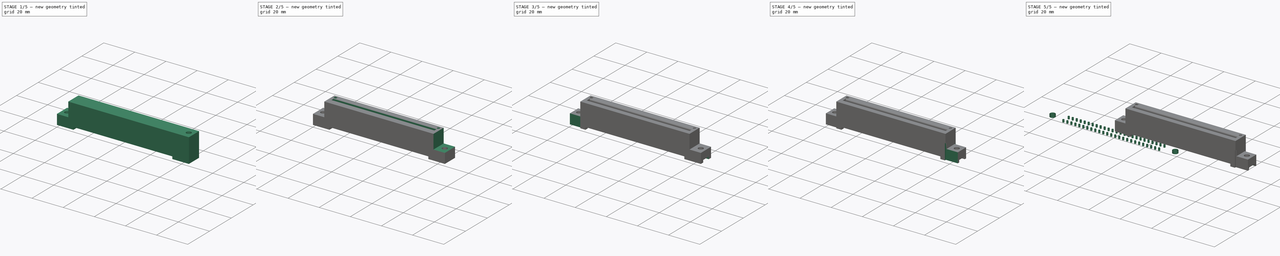
[diagram: build sequence overview — one tinted view per stage of 5, left to right]
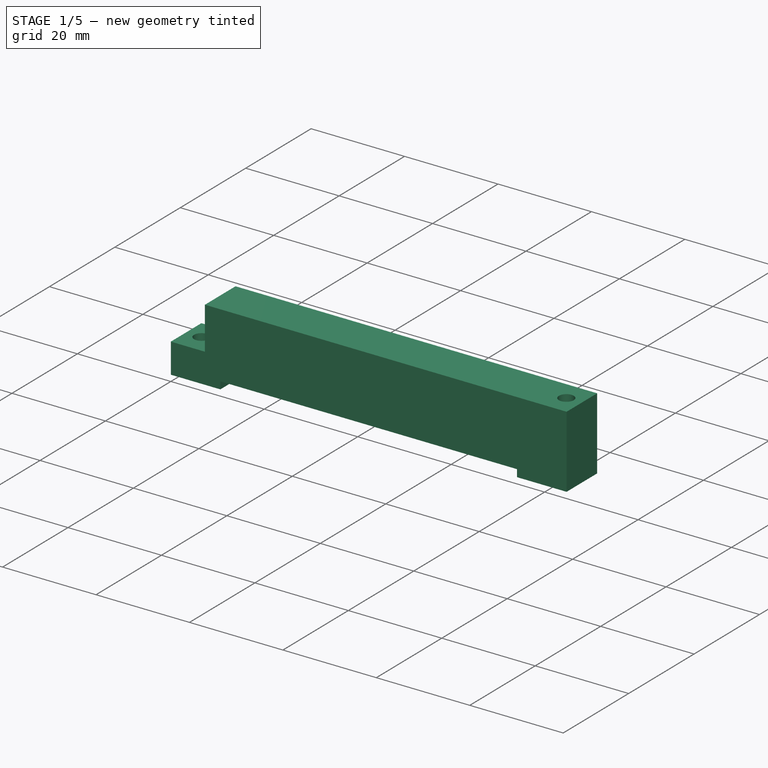
[diagram: stage 1 of 5 — iso view after this stage's code; geometry added in this stage tinted green]
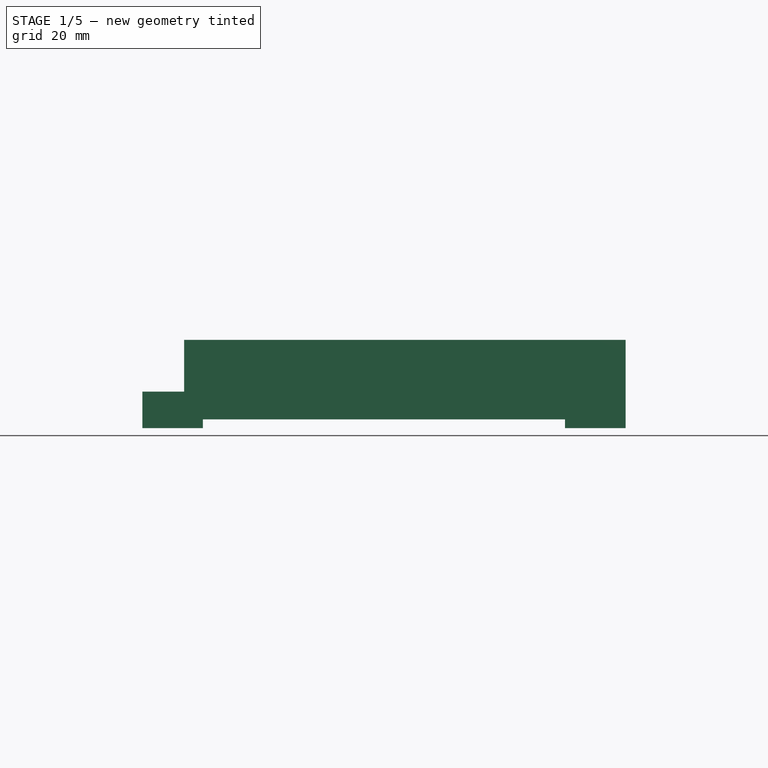
[diagram: stage 1 of 5 — front view after this stage's code; geometry added in this stage tinted green]
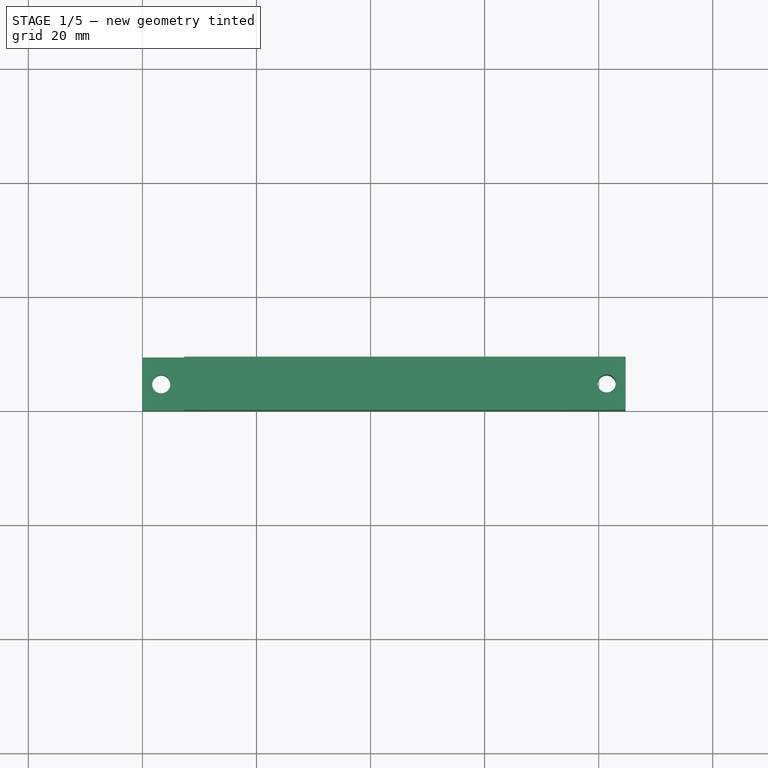
[diagram: stage 1 of 5 — top view after this stage's code; geometry added in this stage tinted green]
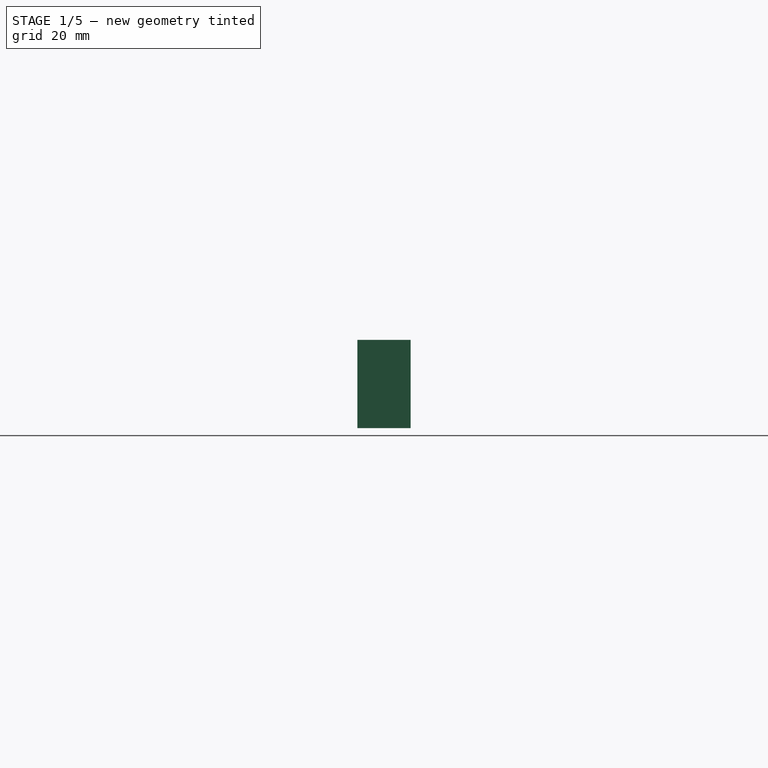
[diagram: stage 1 of 5 — right view after this stage's code; geometry added in this stage tinted green]
FCSTD DOCUMENT  (FreeCAD 0.19R24291 (Git))
Label: MSX-slot
License: All rights reserved
LicenseURL: http://en.wikipedia.org/wiki/All_rights_reserved
objects: PartDesign::SubtractiveBox×12, PartDesign::Chamfer×4, Sketcher::SketchObject×3, PartDesign::SubtractiveCylinder×3, PartDesign::Fillet×2, Part::Feature×2, PartDesign::AdditiveBox×1, Part::FeaturePython×1, App::Part×1, PartDesign::Body×1
note: 51 computed .brp shape members not serialized (recipe doc carries the construction recipe); baked Part::Feature solids carry a one-line shape summary decoded from their .brp

FEATURE [Sketcher::SketchObject] Sketch  label="Top"
  FullyConstrained = false
  Placement = pos=(-73.15,-92.65,15.4901) rot=(0,0,1;0rad)
  sketch-geometry (181):
    g0: LineSegment StartX=73.0185 StartY=93.5025 StartZ=0 EndX=73.0185 EndY=101.123 EndZ=0
    g1: LineSegment StartX=80.448 StartY=101.986 StartZ=0 EndX=80.448 EndY=92.6389 EndZ=0
    g2: LineSegment StartX=80.956 StartY=94.8551 StartZ=0 EndX=80.956 EndY=99.7699 EndZ=0
    g3: LineSegment StartX=81.6672 StartY=100.868 StartZ=0 EndX=81.6672 EndY=99.2429 EndZ=0
    g4: LineSegment StartX=82.48 StartY=98.2459 StartZ=0 EndX=82.48 EndY=96.3791 EndZ=0
    g5: LineSegment StartX=83.2928 StartY=99.2429 StartZ=0 EndX=83.2928 EndY=100.868 EndZ=0
    g6: LineSegment StartX=84.3723 StartY=98.2459 StartZ=0 EndX=84.3723 EndY=97.5924 EndZ=0
    g7: LineSegment StartX=84.3723 StartY=97.0326 StartZ=0 EndX=84.3723 EndY=96.3791 EndZ=0
    g8: LineSegment StartX=85.6677 StartY=98.2459 StartZ=0 EndX=85.6677 EndY=97.5924 EndZ=0
    g9: LineSegment StartX=85.6677 StartY=97.0326 StartZ=0 EndX=85.6677 EndY=96.3791 EndZ=0
    g10: LineSegment StartX=86.9123 StartY=98.2459 StartZ=0 EndX=86.9123 EndY=97.5924 EndZ=0
    g11: LineSegment StartX=86.9123 StartY=97.0326 StartZ=0 EndX=86.9123 EndY=96.3791 EndZ=0
    g12: LineSegment StartX=88.2077 StartY=98.2459 StartZ=0 EndX=88.2077 EndY=97.5924 EndZ=0
    g13: LineSegment StartX=88.2077 StartY=97.0326 StartZ=0 EndX=88.2077 EndY=96.3791 EndZ=0
    g14: LineSegment StartX=89.4523 StartY=98.2459 StartZ=0 EndX=89.4523 EndY=97.5924 EndZ=0
    g15: LineSegment StartX=89.4523 StartY=97.0326 StartZ=0 EndX=89.4523 EndY=96.3791 EndZ=0
    g16: LineSegment StartX=90.7477 StartY=98.2459 StartZ=0 EndX=90.7477 EndY=97.5924 EndZ=0
    g17: LineSegment StartX=90.7477 StartY=97.0326 StartZ=0 EndX=90.7477 EndY=96.3791 EndZ=0
    g18: LineSegment StartX=91.9923 StartY=98.2459 StartZ=0 EndX=91.9923 EndY=97.5924 EndZ=0
    g19: LineSegment StartX=91.9923 StartY=97.0326 StartZ=0 EndX=91.9923 EndY=96.3791 EndZ=0
    g20: LineSegment StartX=93.2877 StartY=98.2459 StartZ=0 EndX=93.2877 EndY=97.5924 EndZ=0
    g21: LineSegment StartX=93.2877 StartY=97.0326 StartZ=0 EndX=93.2877 EndY=96.3791 EndZ=0
    g22: LineSegment StartX=94.5323 StartY=98.2459 StartZ=0 EndX=94.5323 EndY=97.5924 EndZ=0
    g23: LineSegment StartX=94.5323 StartY=97.0326 StartZ=0 EndX=94.5323 EndY=96.3791 EndZ=0
    g24: LineSegment StartX=95.8277 StartY=98.2459 StartZ=0 EndX=95.8277 EndY=97.5924 EndZ=0
    g25: LineSegment StartX=95.8277 StartY=97.0326 StartZ=0 EndX=95.8277 EndY=96.3791 EndZ=0
    g26: LineSegment StartX=97.0723 StartY=98.2459 StartZ=0 EndX=97.0723 EndY=97.5924 EndZ=0
    g27: LineSegment StartX=97.0723 StartY=97.0326 StartZ=0 EndX=97.0723 EndY=96.3791 EndZ=0
    g28: LineSegment StartX=98.3677 StartY=98.2459 StartZ=0 EndX=98.3677 EndY=97.5924 EndZ=0
    g29: LineSegment StartX=98.3677 StartY=97.0326 StartZ=0 EndX=98.3677 EndY=96.3791 EndZ=0
    g30: LineSegment StartX=99.6123 StartY=98.2459 StartZ=0 EndX=99.6123 EndY=97.5924 EndZ=0
    g31: LineSegment StartX=99.6123 StartY=97.0326 StartZ=0 EndX=99.6123 EndY=96.3791 EndZ=0
    g32: LineSegment StartX=100.908 StartY=98.2459 StartZ=0 EndX=100.908 EndY=97.5924 EndZ=0
    g33: LineSegment StartX=100.908 StartY=97.0326 StartZ=0 EndX=100.908 EndY=96.3791 EndZ=0
    g34: LineSegment StartX=102.152 StartY=98.2459 StartZ=0 EndX=102.152 EndY=97.5924 EndZ=0
    g35: LineSegment StartX=102.152 StartY=97.0326 StartZ=0 EndX=102.152 EndY=96.3791 EndZ=0
    g36: LineSegment StartX=103.448 StartY=98.2459 StartZ=0 EndX=103.448 EndY=97.5924 EndZ=0
    g37: LineSegment StartX=103.448 StartY=97.0326 StartZ=0 EndX=103.448 EndY=96.3791 EndZ=0
    g38: LineSegment StartX=104.692 StartY=98.2459 StartZ=0 EndX=104.692 EndY=97.5924 EndZ=0
    g39: LineSegment StartX=104.692 StartY=97.0326 StartZ=0 EndX=104.692 EndY=96.3791 EndZ=0
    g40: LineSegment StartX=105.988 StartY=98.2459 StartZ=0 EndX=105.988 EndY=97.5924 EndZ=0
    g41: LineSegment StartX=105.988 StartY=97.0326 StartZ=0 EndX=105.988 EndY=96.3791 EndZ=0
    g42: LineSegment StartX=107.232 StartY=98.2459 StartZ=0 EndX=107.232 EndY=97.5924 EndZ=0
    g43: LineSegment StartX=107.232 StartY=97.0326 StartZ=0 EndX=107.232 EndY=96.3791 EndZ=0
    g44: LineSegment StartX=108.528 StartY=98.2459 StartZ=0 EndX=108.528 EndY=97.5924 EndZ=0
    g45: LineSegment StartX=108.528 StartY=97.0326 StartZ=0 EndX=108.528 EndY=96.3791 EndZ=0
    g46: LineSegment StartX=109.772 StartY=98.2459 StartZ=0 EndX=109.772 EndY=97.5924 EndZ=0
    g47: LineSegment StartX=109.772 StartY=97.0326 StartZ=0 EndX=109.772 EndY=96.3791 EndZ=0
    g48: LineSegment StartX=111.068 StartY=98.2459 StartZ=0 EndX=111.068 EndY=97.5924 EndZ=0
    g49: LineSegment StartX=111.068 StartY=97.0326 StartZ=0 EndX=111.068 EndY=96.3791 EndZ=0
    g50: LineSegment StartX=112.312 StartY=98.2459 StartZ=0 EndX=112.312 EndY=97.5924 EndZ=0
    g51: LineSegment StartX=112.312 StartY=97.0326 StartZ=0 EndX=112.312 EndY=96.3791 EndZ=0
    g52: LineSegment StartX=80.448 StartY=92.6389 StartZ=0 EndX=150.552 EndY=92.6389 EndZ=0
    g53: LineSegment StartX=157.982 StartY=93.5025 StartZ=0 EndX=150.552 EndY=93.5025 EndZ=0
    g54: LineSegment StartX=80.448 StartY=93.5025 StartZ=0 EndX=73.0185 EndY=93.5025 EndZ=0
    g55: LineSegment StartX=113.608 StartY=98.2459 StartZ=0 EndX=113.608 EndY=97.5924 EndZ=0
    g56: LineSegment StartX=113.608 StartY=97.0326 StartZ=0 EndX=113.608 EndY=96.3791 EndZ=0
    g57: LineSegment StartX=114.852 StartY=98.2459 StartZ=0 EndX=114.852 EndY=97.5924 EndZ=0
    g58: LineSegment StartX=114.852 StartY=97.0326 StartZ=0 EndX=114.852 EndY=96.3791 EndZ=0
    g59: LineSegment StartX=150.044 StartY=94.8551 StartZ=0 EndX=80.956 EndY=94.8551 EndZ=0
    g60: LineSegment StartX=148.52 StartY=96.3791 StartZ=0 EndX=82.48 EndY=96.3791 EndZ=0
    g61: LineSegment StartX=84.3723 StartY=97.0331 StartZ=0 EndX=85.6677 EndY=97.0331 EndZ=0
    g62: LineSegment StartX=86.9123 StartY=97.0331 StartZ=0 EndX=88.2077 EndY=97.0331 EndZ=0
    g63: LineSegment StartX=89.4523 StartY=97.0331 StartZ=0 EndX=90.7477 EndY=97.0331 EndZ=0
    g64: LineSegment StartX=91.9923 StartY=97.0331 StartZ=0 EndX=93.2877 EndY=97.0331 EndZ=0
    g65: LineSegment StartX=94.5323 StartY=97.0331 StartZ=0 EndX=95.8277 EndY=97.0331 EndZ=0
    g66: LineSegment StartX=97.0723 StartY=97.0331 StartZ=0 EndX=98.3677 EndY=97.0331 EndZ=0
    g67: LineSegment StartX=99.6123 StartY=97.0331 StartZ=0 EndX=100.908 EndY=97.0331 EndZ=0
    g68: LineSegment StartX=102.152 StartY=97.0331 StartZ=0 EndX=103.448 EndY=97.0331 EndZ=0
    g69: LineSegment StartX=104.692 StartY=97.0331 StartZ=0 EndX=105.988 EndY=97.0331 EndZ=0
    g70: LineSegment StartX=107.232 StartY=97.0331 StartZ=0 EndX=108.528 EndY=97.0331 EndZ=0
    g71: LineSegment StartX=109.772 StartY=97.0331 StartZ=0 EndX=111.068 EndY=97.0331 EndZ=0
    g72: LineSegment StartX=112.312 StartY=97.0331 StartZ=0 EndX=113.608 EndY=97.0331 EndZ=0
    g73: LineSegment StartX=114.852 StartY=97.0331 StartZ=0 EndX=116.148 EndY=97.0331 EndZ=0
    g74: LineSegment StartX=117.392 StartY=97.0331 StartZ=0 EndX=118.688 EndY=97.0331 EndZ=0
    g75: LineSegment StartX=119.932 StartY=97.0331 StartZ=0 EndX=121.228 EndY=97.0331 EndZ=0
    g76: LineSegment StartX=122.472 StartY=97.0331 StartZ=0 EndX=123.768 EndY=97.0331 EndZ=0
    g77: LineSegment StartX=125.012 StartY=97.0331 StartZ=0 EndX=126.308 EndY=97.0331 EndZ=0
    g78: LineSegment StartX=127.552 StartY=97.0331 StartZ=0 EndX=128.848 EndY=97.0331 EndZ=0
    g79: LineSegment StartX=130.092 StartY=97.0331 StartZ=0 EndX=131.388 EndY=97.0331 EndZ=0
    g80: LineSegment StartX=132.632 StartY=97.0331 StartZ=0 EndX=133.928 EndY=97.0331 EndZ=0
    g81: LineSegment StartX=135.172 StartY=97.0331 StartZ=0 EndX=136.468 EndY=97.0331 EndZ=0
    g82: LineSegment StartX=137.712 StartY=97.0331 StartZ=0 EndX=139.008 EndY=97.0331 EndZ=0
    g83: LineSegment StartX=140.252 StartY=97.0331 StartZ=0 EndX=141.548 EndY=97.0331 EndZ=0
    g84: LineSegment StartX=142.792 StartY=97.0331 StartZ=0 EndX=144.088 EndY=97.0331 EndZ=0
    g85: LineSegment StartX=145.332 StartY=97.0331 StartZ=0 EndX=146.628 EndY=97.0331 EndZ=0
    g86: LineSegment StartX=84.3723 StartY=97.5919 StartZ=0 EndX=85.6677 EndY=97.5919 EndZ=0
    g87: LineSegment StartX=86.9123 StartY=97.5919 StartZ=0 EndX=88.2077 EndY=97.5919 EndZ=0
    g88: LineSegment StartX=89.4523 StartY=97.5919 StartZ=0 EndX=90.7477 EndY=97.5919 EndZ=0
    g89: LineSegment StartX=91.9923 StartY=97.5919 StartZ=0 EndX=93.2877 EndY=97.5919 EndZ=0
    g90: LineSegment StartX=94.5323 StartY=97.5919 StartZ=0 EndX=95.8277 EndY=97.5919 EndZ=0
    g91: LineSegment StartX=97.0723 StartY=97.5919 StartZ=0 EndX=98.3677 EndY=97.5919 EndZ=0
    g92: LineSegment StartX=99.6123 StartY=97.5919 StartZ=0 EndX=100.908 EndY=97.5919 EndZ=0
    g93: LineSegment StartX=102.152 StartY=97.5919 StartZ=0 EndX=103.448 EndY=97.5919 EndZ=0
    g94: LineSegment StartX=104.692 StartY=97.5919 StartZ=0 EndX=105.988 EndY=97.5919 EndZ=0
    g95: LineSegment StartX=107.232 StartY=97.5919 StartZ=0 EndX=108.528 EndY=97.5919 EndZ=0
    g96: LineSegment StartX=109.772 StartY=97.5919 StartZ=0 EndX=111.068 EndY=97.5919 EndZ=0
    g97: LineSegment StartX=112.312 StartY=97.5919 StartZ=0 EndX=113.608 EndY=97.5919 EndZ=0
    g98: LineSegment StartX=114.852 StartY=97.5919 StartZ=0 EndX=116.148 EndY=97.5919 EndZ=0
    g99: LineSegment StartX=117.392 StartY=97.5919 StartZ=0 EndX=118.688 EndY=97.5919 EndZ=0
    g100: LineSegment StartX=119.932 StartY=97.5919 StartZ=0 EndX=121.228 EndY=97.5919 EndZ=0
    g101: LineSegment StartX=122.472 StartY=97.5919 StartZ=0 EndX=123.768 EndY=97.5919 EndZ=0
    g102: LineSegment StartX=125.012 StartY=97.5919 StartZ=0 EndX=126.308 EndY=97.5919 EndZ=0
    g103: LineSegment StartX=127.552 StartY=97.5919 StartZ=0 EndX=128.848 EndY=97.5919 EndZ=0
    g104: LineSegment StartX=130.092 StartY=97.5919 StartZ=0 EndX=131.388 EndY=97.5919 EndZ=0
    g105: LineSegment StartX=132.632 StartY=97.5919 StartZ=0 EndX=133.928 EndY=97.5919 EndZ=0
    g106: LineSegment StartX=135.172 StartY=97.5919 StartZ=0 EndX=136.468 EndY=97.5919 EndZ=0
    g107: LineSegment StartX=137.712 StartY=97.5919 StartZ=0 EndX=139.008 EndY=97.5919 EndZ=0
    g108: LineSegment StartX=140.252 StartY=97.5919 StartZ=0 EndX=141.548 EndY=97.5919 EndZ=0
    g109: LineSegment StartX=142.792 StartY=97.5919 StartZ=0 EndX=144.088 EndY=97.5919 EndZ=0
    g110: LineSegment StartX=145.332 StartY=97.5919 StartZ=0 EndX=146.628 EndY=97.5919 EndZ=0
    g111: LineSegment StartX=116.148 StartY=98.2459 StartZ=0 EndX=116.148 EndY=97.5924 EndZ=0
    g112: LineSegment StartX=116.148 StartY=97.0326 StartZ=0 EndX=116.148 EndY=96.3791 EndZ=0
    g113: LineSegment StartX=117.392 StartY=98.2459 StartZ=0 EndX=117.392 EndY=97.5924 EndZ=0
    g114: LineSegment StartX=117.392 StartY=97.0326 StartZ=0 EndX=117.392 EndY=96.3791 EndZ=0
    g115: LineSegment StartX=118.688 StartY=98.2459 StartZ=0 EndX=118.688 EndY=97.5924 EndZ=0
    g116: LineSegment StartX=118.688 StartY=97.0326 StartZ=0 EndX=118.688 EndY=96.3791 EndZ=0
    g117: LineSegment StartX=82.48 StartY=98.2459 StartZ=0 EndX=148.52 EndY=98.2459 EndZ=0
    g118: LineSegment StartX=81.6672 StartY=99.2429 StartZ=0 EndX=83.2928 EndY=99.2429 EndZ=0
    g119: LineSegment StartX=80.956 StartY=99.7699 StartZ=0 EndX=81.6672 EndY=99.7699 EndZ=0
    g120: LineSegment StartX=83.2928 StartY=99.7699 StartZ=0 EndX=147.759 EndY=99.7699 EndZ=0
    g121: LineSegment StartX=149.281 StartY=99.7699 StartZ=0 EndX=150.044 EndY=99.7699 EndZ=0
    g122: LineSegment StartX=119.932 StartY=98.2459 StartZ=0 EndX=119.932 EndY=97.5924 EndZ=0
    g123: LineSegment StartX=119.932 StartY=97.0326 StartZ=0 EndX=119.932 EndY=96.3791 EndZ=0
    g124: LineSegment StartX=121.228 StartY=98.2459 StartZ=0 EndX=121.228 EndY=97.5924 EndZ=0
    g125: LineSegment StartX=121.228 StartY=97.0326 StartZ=0 EndX=121.228 EndY=96.3791 EndZ=0
    g126: LineSegment StartX=83.2928 StartY=100.868 StartZ=0 EndX=81.6672 EndY=100.868 EndZ=0
    g127: LineSegment StartX=157.982 StartY=101.123 StartZ=0 EndX=150.552 EndY=101.123 EndZ=0
    g128: LineSegment StartX=80.448 StartY=101.123 StartZ=0 EndX=73.0185 EndY=101.123 EndZ=0
    g129: LineSegment StartX=80.448 StartY=101.986 StartZ=0 EndX=150.552 EndY=101.986 EndZ=0
    g130: LineSegment StartX=122.472 StartY=98.2459 StartZ=0 EndX=122.472 EndY=97.5924 EndZ=0
    g131: LineSegment StartX=122.472 StartY=97.0326 StartZ=0 EndX=122.472 EndY=96.3791 EndZ=0
    g132: LineSegment StartX=123.768 StartY=98.2459 StartZ=0 EndX=123.768 EndY=97.5924 EndZ=0
    g133: LineSegment StartX=123.768 StartY=97.0326 StartZ=0 EndX=123.768 EndY=96.3791 EndZ=0
    g134: LineSegment StartX=125.012 StartY=98.2459 StartZ=0 EndX=125.012 EndY=97.5924 EndZ=0
    g135: LineSegment StartX=125.012 StartY=97.0326 StartZ=0 EndX=125.012 EndY=96.3791 EndZ=0
    g136: LineSegment StartX=126.308 StartY=98.2459 StartZ=0 EndX=126.308 EndY=97.5924 EndZ=0
    g137: LineSegment StartX=126.308 StartY=97.0326 StartZ=0 EndX=126.308 EndY=96.3791 EndZ=0
    g138: LineSegment StartX=127.552 StartY=98.2459 StartZ=0 EndX=127.552 EndY=97.5924 EndZ=0
    g139: LineSegment StartX=127.552 StartY=97.0326 StartZ=0 EndX=127.552 EndY=96.3791 EndZ=0
    g140: LineSegment StartX=128.848 StartY=98.2459 StartZ=0 EndX=128.848 EndY=97.5924 EndZ=0
    g141: LineSegment StartX=128.848 StartY=97.0326 StartZ=0 EndX=128.848 EndY=96.3791 EndZ=0
    g142: LineSegment StartX=130.092 StartY=98.2459 StartZ=0 EndX=130.092 EndY=97.5924 EndZ=0
    g143: LineSegment StartX=130.092 StartY=97.0326 StartZ=0 EndX=130.092 EndY=96.3791 EndZ=0
    g144: LineSegment StartX=131.388 StartY=98.2459 StartZ=0 EndX=131.388 EndY=97.5924 EndZ=0
    g145: LineSegment StartX=131.388 StartY=97.0326 StartZ=0 EndX=131.388 EndY=96.3791 EndZ=0
    g146: LineSegment StartX=132.632 StartY=98.2459 StartZ=0 EndX=132.632 EndY=97.5924 EndZ=0
    g147: LineSegment StartX=132.632 StartY=97.0326 StartZ=0 EndX=132.632 EndY=96.3791 EndZ=0
    g148: LineSegment StartX=133.928 StartY=98.2459 StartZ=0 EndX=133.928 EndY=97.5924 EndZ=0
    g149: LineSegment StartX=133.928 StartY=97.0326 StartZ=0 EndX=133.928 EndY=96.3791 EndZ=0
    g150: LineSegment StartX=135.172 StartY=98.2459 StartZ=0 EndX=135.172 EndY=97.5924 EndZ=0
    g151: LineSegment StartX=135.172 StartY=97.0326 StartZ=0 EndX=135.172 EndY=96.3791 EndZ=0
    g152: LineSegment StartX=136.468 StartY=98.2459 StartZ=0 EndX=136.468 EndY=97.5924 EndZ=0
    g153: LineSegment StartX=136.468 StartY=97.0326 StartZ=0 EndX=136.468 EndY=96.3791 EndZ=0
    g154: LineSegment StartX=137.712 StartY=98.2459 StartZ=0 EndX=137.712 EndY=97.5924 EndZ=0
    g155: LineSegment StartX=137.712 StartY=97.0326 StartZ=0 EndX=137.712 EndY=96.3791 EndZ=0
    g156: LineSegment StartX=139.008 StartY=98.2459 StartZ=0 EndX=139.008 EndY=97.5924 EndZ=0
    g157: LineSegment StartX=139.008 StartY=97.0326 StartZ=0 EndX=139.008 EndY=96.3791 EndZ=0
    g158: LineSegment StartX=140.252 StartY=98.2459 StartZ=0 EndX=140.252 EndY=97.5924 EndZ=0
    g159: LineSegment StartX=140.252 StartY=97.0326 StartZ=0 EndX=140.252 EndY=96.3791 EndZ=0
    g160: LineSegment StartX=141.548 StartY=98.2459 StartZ=0 EndX=141.548 EndY=97.5924 EndZ=0
    g161: LineSegment StartX=141.548 StartY=97.0326 StartZ=0 EndX=141.548 EndY=96.3791 EndZ=0
    g162: LineSegment StartX=142.792 StartY=98.2459 StartZ=0 EndX=142.792 EndY=97.5924 EndZ=0
    g163: LineSegment StartX=142.792 StartY=97.0326 StartZ=0 EndX=142.792 EndY=96.3791 EndZ=0
    g164: LineSegment StartX=144.088 StartY=98.2459 StartZ=0 EndX=144.088 EndY=97.5924 EndZ=0
    g165: LineSegment StartX=144.088 StartY=97.0326 StartZ=0 EndX=144.088 EndY=96.3791 EndZ=0
    g166: LineSegment StartX=145.332 StartY=98.2459 StartZ=0 EndX=145.332 EndY=97.5924 EndZ=0
    g167: LineSegment StartX=145.332 StartY=97.0326 StartZ=0 EndX=145.332 EndY=96.3791 EndZ=0
    g168: LineSegment StartX=146.628 StartY=98.2459 StartZ=0 EndX=146.628 EndY=97.5924 EndZ=0
    g169: LineSegment StartX=146.628 StartY=97.0326 StartZ=0 EndX=146.628 EndY=96.3791 EndZ=0
    g170: LineSegment StartX=148.52 StartY=98.2459 StartZ=0 EndX=148.52 EndY=96.3791 EndZ=0
    g171: LineSegment StartX=150.044 StartY=99.7699 StartZ=0 EndX=150.044 EndY=94.8551 EndZ=0
    g172: LineSegment StartX=150.552 StartY=101.986 StartZ=0 EndX=150.552 EndY=92.6389 EndZ=0
    g173: LineSegment StartX=157.982 StartY=93.5025 StartZ=0 EndX=157.982 EndY=101.123 EndZ=0
    g174: Circle CenterX=154.553 CenterY=97.3125 CenterZ=0 NormalX=0 NormalY=0 NormalZ=-1 AngleXU=0 Radius=1.6256
    g175: Circle CenterX=76.4475 CenterY=97.3125 CenterZ=0 NormalX=0 NormalY=0 NormalZ=-1 AngleXU=0 Radius=1.6256
    g176: Circle CenterX=148.52 CenterY=100.056 CenterZ=0 NormalX=0 NormalY=0 NormalZ=-1 AngleXU=0 Radius=0.8128
    g177: Ellipse CenterX=148.52 CenterY=99.7699 CenterZ=0 NormalX=0 NormalY=0 NormalZ=1 MajorRadius=1.524 MinorRadius=1.524 AngleXU=0
    g178: Ellipse CenterX=82.48 CenterY=94.8551 CenterZ=0 NormalX=0 NormalY=0 NormalZ=1 MajorRadius=1.524 MinorRadius=1.524 AngleXU=0
    g179: Ellipse CenterX=148.52 CenterY=94.8551 CenterZ=0 NormalX=0 NormalY=0 NormalZ=1 MajorRadius=1.524 MinorRadius=1.524 AngleXU=1.5708
    g180: Ellipse CenterX=82.48 CenterY=99.7699 CenterZ=0 NormalX=0 NormalY=0 NormalZ=1 MajorRadius=1.524 MinorRadius=1.524 AngleXU=1.5708
FEATURE [Sketcher::SketchObject] Sketch001  label="Side"
  FullyConstrained = false
  Placement = pos=(157.85,9.3501,204.3) rot=(0,-0.707107,0.707107;3.14159rad)
  sketch-geometry (94):
    g0: LineSegment StartX=73.0185 StartY=197.922 StartZ=0 EndX=73.0185 EndY=204.272 EndZ=0
    g1: LineSegment StartX=80.448 StartY=188.778 StartZ=0 EndX=80.448 EndY=197.922 EndZ=0
    g2: LineSegment StartX=81.845 StartY=204.272 StartZ=0 EndX=81.845 EndY=197.668 EndZ=0
    g3: LineSegment StartX=83.75 StartY=203.129 StartZ=0 EndX=83.75 EndY=204.272 EndZ=0
    g4: LineSegment StartX=84.512 StartY=202.748 StartZ=0 EndX=84.512 EndY=202.875 EndZ=0
    g5: LineSegment StartX=84.7152 StartY=207.447 StartZ=0 EndX=84.7152 EndY=202.748 EndZ=0
    g6: LineSegment StartX=85.3248 StartY=207.447 StartZ=0 EndX=85.3248 EndY=202.748 EndZ=0
    g7: LineSegment StartX=87.2552 StartY=207.447 StartZ=0 EndX=87.2552 EndY=202.748 EndZ=0
    g8: LineSegment StartX=87.8648 StartY=207.447 StartZ=0 EndX=87.8648 EndY=202.748 EndZ=0
    g9: LineSegment StartX=89.7952 StartY=207.447 StartZ=0 EndX=89.7952 EndY=202.748 EndZ=0
    g10: LineSegment StartX=90.4048 StartY=207.447 StartZ=0 EndX=90.4048 EndY=202.748 EndZ=0
    g11: LineSegment StartX=92.3352 StartY=207.447 StartZ=0 EndX=92.3352 EndY=202.748 EndZ=0
    g12: LineSegment StartX=92.9448 StartY=207.447 StartZ=0 EndX=92.9448 EndY=202.748 EndZ=0
    g13: LineSegment StartX=94.8752 StartY=207.447 StartZ=0 EndX=94.8752 EndY=202.748 EndZ=0
    g14: LineSegment StartX=95.4848 StartY=207.447 StartZ=0 EndX=95.4848 EndY=202.748 EndZ=0
    g15: LineSegment StartX=97.4152 StartY=207.447 StartZ=0 EndX=97.4152 EndY=202.748 EndZ=0
    g16: LineSegment StartX=98.0248 StartY=207.447 StartZ=0 EndX=98.0248 EndY=202.748 EndZ=0
    g17: LineSegment StartX=99.9552 StartY=207.447 StartZ=0 EndX=99.9552 EndY=202.748 EndZ=0
    g18: LineSegment StartX=100.565 StartY=207.447 StartZ=0 EndX=100.565 EndY=202.748 EndZ=0
    g19: LineSegment StartX=102.495 StartY=207.447 StartZ=0 EndX=102.495 EndY=202.748 EndZ=0
    g20: LineSegment StartX=103.105 StartY=207.447 StartZ=0 EndX=103.105 EndY=202.748 EndZ=0
    g21: LineSegment StartX=105.035 StartY=207.447 StartZ=0 EndX=105.035 EndY=202.748 EndZ=0
    g22: LineSegment StartX=105.645 StartY=207.447 StartZ=0 EndX=105.645 EndY=202.748 EndZ=0
    g23: LineSegment StartX=80.448 StartY=188.778 StartZ=0 EndX=150.552 EndY=188.778 EndZ=0
    g24: LineSegment StartX=107.575 StartY=207.447 StartZ=0 EndX=107.575 EndY=202.748 EndZ=0
    g25: LineSegment StartX=108.185 StartY=207.447 StartZ=0 EndX=108.185 EndY=202.748 EndZ=0
    g26: LineSegment StartX=110.115 StartY=207.447 StartZ=0 EndX=110.115 EndY=202.748 EndZ=0
    g27: LineSegment StartX=110.725 StartY=207.447 StartZ=0 EndX=110.725 EndY=202.748 EndZ=0
    g28: LineSegment StartX=112.655 StartY=207.447 StartZ=0 EndX=112.655 EndY=202.748 EndZ=0
    g29: LineSegment StartX=113.265 StartY=207.447 StartZ=0 EndX=113.265 EndY=202.748 EndZ=0
    g30: LineSegment StartX=115.195 StartY=207.447 StartZ=0 EndX=115.195 EndY=202.748 EndZ=0
    g31: LineSegment StartX=115.805 StartY=207.447 StartZ=0 EndX=115.805 EndY=202.748 EndZ=0
    g32: LineSegment StartX=80.448 StartY=197.668 StartZ=0 EndX=150.552 EndY=197.668 EndZ=0
    g33: LineSegment StartX=157.982 StartY=197.922 StartZ=0 EndX=150.552 EndY=197.922 EndZ=0
    g34: LineSegment StartX=80.448 StartY=197.922 StartZ=0 EndX=73.0185 EndY=197.922 EndZ=0
    g35: LineSegment StartX=117.735 StartY=207.447 StartZ=0 EndX=117.735 EndY=202.748 EndZ=0
    g36: LineSegment StartX=118.345 StartY=207.447 StartZ=0 EndX=118.345 EndY=202.748 EndZ=0
    g37: LineSegment StartX=120.275 StartY=207.447 StartZ=0 EndX=120.275 EndY=202.748 EndZ=0
    g38: LineSegment StartX=120.885 StartY=207.447 StartZ=0 EndX=120.885 EndY=202.748 EndZ=0
    g39: LineSegment StartX=84.131 StartY=202.748 StartZ=0 EndX=146.869 EndY=202.748 EndZ=0
    g40: LineSegment StartX=84.512 StartY=202.875 StartZ=0 EndX=84.7152 EndY=202.875 EndZ=0
    g41: LineSegment StartX=157.982 StartY=204.272 StartZ=0 EndX=147.25 EndY=204.272 EndZ=0
    g42: LineSegment StartX=73.0185 StartY=204.272 StartZ=0 EndX=83.75 EndY=204.272 EndZ=0
    g43: LineSegment StartX=122.815 StartY=207.447 StartZ=0 EndX=122.815 EndY=202.748 EndZ=0
    g44: LineSegment StartX=123.425 StartY=207.447 StartZ=0 EndX=123.425 EndY=202.748 EndZ=0
    g45: LineSegment StartX=125.355 StartY=207.447 StartZ=0 EndX=125.355 EndY=202.748 EndZ=0
    g46: LineSegment StartX=125.965 StartY=207.447 StartZ=0 EndX=125.965 EndY=202.748 EndZ=0
    g47: LineSegment StartX=84.7152 StartY=207.447 StartZ=0 EndX=85.3248 EndY=207.447 EndZ=0
    g48: LineSegment StartX=87.2552 StartY=207.447 StartZ=0 EndX=87.8648 EndY=207.447 EndZ=0
    g49: LineSegment StartX=89.7952 StartY=207.447 StartZ=0 EndX=90.4048 EndY=207.447 EndZ=0
    g50: LineSegment StartX=92.3352 StartY=207.447 StartZ=0 EndX=92.9448 EndY=207.447 EndZ=0
    g51: LineSegment StartX=94.8752 StartY=207.447 StartZ=0 EndX=95.4848 EndY=207.447 EndZ=0
    g52: LineSegment StartX=97.4152 StartY=207.447 StartZ=0 EndX=98.0248 EndY=207.447 EndZ=0
    g53: LineSegment StartX=99.9552 StartY=207.447 StartZ=0 EndX=100.565 EndY=207.447 EndZ=0
    g54: LineSegment StartX=102.495 StartY=207.447 StartZ=0 EndX=103.105 EndY=207.447 EndZ=0
    g55: LineSegment StartX=105.035 StartY=207.447 StartZ=0 EndX=105.645 EndY=207.447 EndZ=0
    g56: LineSegment StartX=107.575 StartY=207.447 StartZ=0 EndX=108.185 EndY=207.447 EndZ=0
    g57: LineSegment StartX=110.115 StartY=207.447 StartZ=0 EndX=110.725 EndY=207.447 EndZ=0
    g58: LineSegment StartX=112.655 StartY=207.447 StartZ=0 EndX=113.265 EndY=207.447 EndZ=0
    g59: LineSegment StartX=115.195 StartY=207.447 StartZ=0 EndX=115.805 EndY=207.447 EndZ=0
    g60: LineSegment StartX=117.735 StartY=207.447 StartZ=0 EndX=118.345 EndY=207.447 EndZ=0
    g61: LineSegment StartX=120.275 StartY=207.447 StartZ=0 EndX=120.885 EndY=207.447 EndZ=0
    g62: LineSegment StartX=122.815 StartY=207.447 StartZ=0 EndX=123.425 EndY=207.447 EndZ=0
    g63: LineSegment StartX=125.355 StartY=207.447 StartZ=0 EndX=125.965 EndY=207.447 EndZ=0
    g64: LineSegment StartX=127.895 StartY=207.447 StartZ=0 EndX=128.505 EndY=207.447 EndZ=0
    g65: LineSegment StartX=130.435 StartY=207.447 StartZ=0 EndX=131.045 EndY=207.447 EndZ=0
    g66: LineSegment StartX=132.975 StartY=207.447 StartZ=0 EndX=133.585 EndY=207.447 EndZ=0
    g67: LineSegment StartX=135.515 StartY=207.447 StartZ=0 EndX=136.125 EndY=207.447 EndZ=0
    g68: LineSegment StartX=138.055 StartY=207.447 StartZ=0 EndX=138.665 EndY=207.447 EndZ=0
    g69: LineSegment StartX=140.595 StartY=207.447 StartZ=0 EndX=141.205 EndY=207.447 EndZ=0
    g70: LineSegment StartX=143.135 StartY=207.447 StartZ=0 EndX=143.745 EndY=207.447 EndZ=0
    g71: LineSegment StartX=145.675 StartY=207.447 StartZ=0 EndX=146.285 EndY=207.447 EndZ=0
    g72: LineSegment StartX=127.895 StartY=207.447 StartZ=0 EndX=127.895 EndY=202.748 EndZ=0
    g73: LineSegment StartX=128.505 StartY=207.447 StartZ=0 EndX=128.505 EndY=202.748 EndZ=0
    g74: LineSegment StartX=130.435 StartY=207.447 StartZ=0 EndX=130.435 EndY=202.748 EndZ=0
    g75: LineSegment StartX=131.045 StartY=207.447 StartZ=0 EndX=131.045 EndY=202.748 EndZ=0
    g76: LineSegment StartX=132.975 StartY=207.447 StartZ=0 EndX=132.975 EndY=202.748 EndZ=0
    g77: LineSegment StartX=133.585 StartY=207.447 StartZ=0 EndX=133.585 EndY=202.748 EndZ=0
    g78: LineSegment StartX=135.515 StartY=207.447 StartZ=0 EndX=135.515 EndY=202.748 EndZ=0
    g79: LineSegment StartX=136.125 StartY=207.447 StartZ=0 EndX=136.125 EndY=202.748 EndZ=0
    g80: LineSegment StartX=138.055 StartY=207.447 StartZ=0 EndX=138.055 EndY=202.748 EndZ=0
    g81: LineSegment StartX=138.665 StartY=207.447 StartZ=0 EndX=138.665 EndY=202.748 EndZ=0
    g82: LineSegment StartX=140.595 StartY=207.447 StartZ=0 EndX=140.595 EndY=202.748 EndZ=0
    g83: LineSegment StartX=141.205 StartY=207.447 StartZ=0 EndX=141.205 EndY=202.748 EndZ=0
    g84: LineSegment StartX=143.135 StartY=207.447 StartZ=0 EndX=143.135 EndY=202.748 EndZ=0
    g85: LineSegment StartX=143.745 StartY=207.447 StartZ=0 EndX=143.745 EndY=202.748 EndZ=0
    g86: LineSegment StartX=145.675 StartY=207.447 StartZ=0 EndX=145.675 EndY=202.748 EndZ=0
    g87: LineSegment StartX=146.285 StartY=207.447 StartZ=0 EndX=146.285 EndY=202.748 EndZ=0
    g88: LineSegment StartX=147.25 StartY=204.272 StartZ=0 EndX=147.25 EndY=203.129 EndZ=0
    g89: LineSegment StartX=149.155 StartY=197.668 StartZ=0 EndX=149.155 EndY=204.272 EndZ=0
    g90: LineSegment StartX=150.552 StartY=197.922 StartZ=0 EndX=150.552 EndY=188.778 EndZ=0
    g91: LineSegment StartX=157.982 StartY=204.272 StartZ=0 EndX=157.982 EndY=197.922 EndZ=0
    g92: ArcOfCircle CenterX=146.869 CenterY=203.129 CenterZ=0 NormalX=0 NormalY=0 NormalZ=1 AngleXU=0 Radius=0.381 StartAngle=4.71239 EndAngle=6.28319
    g93: ArcOfCircle CenterX=84.131 CenterY=203.129 CenterZ=0 NormalX=0 NormalY=0 NormalZ=1 AngleXU=0 Radius=0.381 StartAngle=3.14159 EndAngle=4.71239
FEATURE [Sketcher::SketchObject] Sketch002  label="Front"
  FullyConstrained = false
  Placement = pos=(0,-92.6375,258.125) rot=(0,-1,0;4.71239rad)
  sketch-geometry (37):
    g0: LineSegment StartX=242.666 StartY=101.986 StartZ=0 EndX=242.666 EndY=92.6389 EndZ=0
    g1: LineSegment StartX=242.666 StartY=92.6389 StartZ=0 EndX=251.555 EndY=92.6389 EndZ=0
    g2: LineSegment StartX=258.159 StartY=93.2739 StartZ=0 EndX=251.555 EndY=93.2739 EndZ=0
    g3: LineSegment StartX=251.555 StartY=93.5025 StartZ=0 EndX=258.159 EndY=93.5025 EndZ=0
    g4: LineSegment StartX=256.787 StartY=94.6874 StartZ=0 EndX=261.334 EndY=94.6874 EndZ=0
    g5: LineSegment StartX=261.334 StartY=95.0862 StartZ=0 EndX=256.635 EndY=95.0862 EndZ=0
    g6: LineSegment StartX=256.635 StartY=95.2805 StartZ=0 EndX=256.762 EndY=95.2805 EndZ=0
    g7: LineSegment StartX=256.886 StartY=99.9987 StartZ=0 EndX=258.159 EndY=100.462 EndZ=0
    g8: LineSegment StartX=256.635 StartY=96.2965 StartZ=0 EndX=256.762 EndY=96.2965 EndZ=0
    g9: LineSegment StartX=258.159 StartY=94.1629 StartZ=0 EndX=256.886 EndY=94.6263 EndZ=0
    g10: LineSegment StartX=251.555 StartY=92.6389 StartZ=0 EndX=251.555 EndY=93.5025 EndZ=0
    g11: LineSegment StartX=251.555 StartY=101.123 StartZ=0 EndX=251.555 EndY=101.986 EndZ=0
    g12: LineSegment StartX=251.81 StartY=93.5025 StartZ=0 EndX=251.81 EndY=101.123 EndZ=0
    g13: LineSegment StartX=256.635 StartY=98.2015 StartZ=0 EndX=256.762 EndY=98.2015 EndZ=0
    g14: LineSegment StartX=256.635 StartY=98.2231 StartZ=0 EndX=256.762 EndY=98.2231 EndZ=0
    g15: LineSegment StartX=256.635 StartY=98.2664 StartZ=0 EndX=256.762 EndY=98.2664 EndZ=0
    g16: LineSegment StartX=256.635 StartY=98.3528 StartZ=0 EndX=256.762 EndY=98.3528 EndZ=0
    g17: LineSegment StartX=256.635 StartY=98.4393 StartZ=0 EndX=256.762 EndY=98.4393 EndZ=0
    g18: LineSegment StartX=256.635 StartY=98.4825 StartZ=0 EndX=256.762 EndY=98.4825 EndZ=0
    g19: LineSegment StartX=256.635 StartY=98.569 StartZ=0 EndX=256.762 EndY=98.569 EndZ=0
    g20: LineSegment StartX=256.635 StartY=98.6338 StartZ=0 EndX=256.762 EndY=98.6338 EndZ=0
    g21: LineSegment StartX=256.635 StartY=99.1094 StartZ=0 EndX=256.762 EndY=99.1094 EndZ=0
    g22: LineSegment StartX=256.635 StartY=99.2175 StartZ=0 EndX=256.762 EndY=99.2175 EndZ=0
    g23: LineSegment StartX=256.635 StartY=99.5388 StartZ=0 EndX=261.334 EndY=99.5388 EndZ=0
    g24: LineSegment StartX=261.334 StartY=99.9376 StartZ=0 EndX=256.787 EndY=99.9376 EndZ=0
    g25: LineSegment StartX=258.159 StartY=101.123 StartZ=0 EndX=251.555 EndY=101.123 EndZ=0
    g26: LineSegment StartX=251.555 StartY=101.351 StartZ=0 EndX=258.159 EndY=101.351 EndZ=0
    g27: LineSegment StartX=256.635 StartY=94.9844 StartZ=0 EndX=256.635 EndY=99.6406 EndZ=0
    g28: LineSegment StartX=256.762 StartY=99.2175 StartZ=0 EndX=256.762 EndY=98.2015 EndZ=0
    g29: LineSegment StartX=256.762 StartY=96.2965 StartZ=0 EndX=256.762 EndY=95.2805 EndZ=0
    g30: LineSegment StartX=251.555 StartY=101.986 StartZ=0 EndX=242.666 EndY=101.986 EndZ=0
    g31: LineSegment StartX=258.159 StartY=93.2739 StartZ=0 EndX=258.159 EndY=94.1629 EndZ=0
    g32: LineSegment StartX=258.159 StartY=100.462 StartZ=0 EndX=258.159 EndY=101.351 EndZ=0
    g33: LineSegment StartX=261.334 StartY=94.6874 StartZ=0 EndX=261.334 EndY=95.0862 EndZ=0
    g34: LineSegment StartX=261.334 StartY=99.5388 StartZ=0 EndX=261.334 EndY=99.9376 EndZ=0
    g35: ArcOfCircle CenterX=257.017 CenterY=99.6406 CenterZ=0 NormalX=0 NormalY=0 NormalZ=1 AngleXU=0 Radius=0.381 StartAngle=1.91986 EndAngle=3.14159
    g36: ArcOfCircle CenterX=257.017 CenterY=94.9844 CenterZ=0 NormalX=0 NormalY=0 NormalZ=1 AngleXU=0 Radius=0.381 StartAngle=3.14159 EndAngle=4.36332
FEATURE [PartDesign::AdditiveBox] Box
  AttacherType = Attacher::AttachEngine3D
  Height = 15.49
  Length = 84.71
  MapMode = 5
  Support = -> [XY_Plane]
  Width = 9.35
FEATURE [PartDesign::SubtractiveBox] Box001
  AttacherType = Attacher::AttachEngine3D
  AttachmentOffset = pos=(10.6,0,0) rot=(0,0,1;0rad)
  BaseFeature = -> Box
  Height = 1.55
  Length = 63.5
  MapMode = 5
  Placement = pos=(10.6,0,0) rot=(0,0,1;0rad)
  Support = -> [XY_Plane]
  Width = 9.35
FEATURE [PartDesign::SubtractiveCylinder] Cylinder  label="termination-hole"
  Angle = 360
  AttacherType = Attacher::AttachEngine3D
  AttachmentOffset = pos=(3.3,4.66,-1) rot=(0,0,1;0rad)
  BaseFeature = -> Box001
  Height = 17
  MapMode = 5
  Placement = pos=(3.3,4.66,-1) rot=(0,0,1;0rad)
  Radius = 1.59
  Support = -> [XY_Plane]
FEATURE [PartDesign::SubtractiveCylinder] Cylinder001  label="termhole2"
  Angle = 360
  AttacherType = Attacher::AttachEngine3D
  AttachmentOffset = pos=(81.4,4.66,-1) rot=(0,0,1;0rad)
  BaseFeature = -> Cylinder
  Height = 17
  MapMode = 5
  Placement = pos=(81.4,4.66,-1) rot=(0,0,1;0rad)
  Radius = 1.59
  Support = -> [XY_Plane]
FEATURE [PartDesign::SubtractiveBox] Box002  label="mounting-ear1"
  AttacherType = Attacher::AttachEngine3D
  AttachmentOffset = pos=(-1.7,0,6.4) rot=(0,0,1;0rad)
  BaseFeature = -> Cylinder001
  Height = 9.35
  Length = 9
  MapMode = 5
  Placement = pos=(-1.7,0,6.4) rot=(0,0,1;0rad)
  Support = -> [XY_Plane]
  Width = 9.35
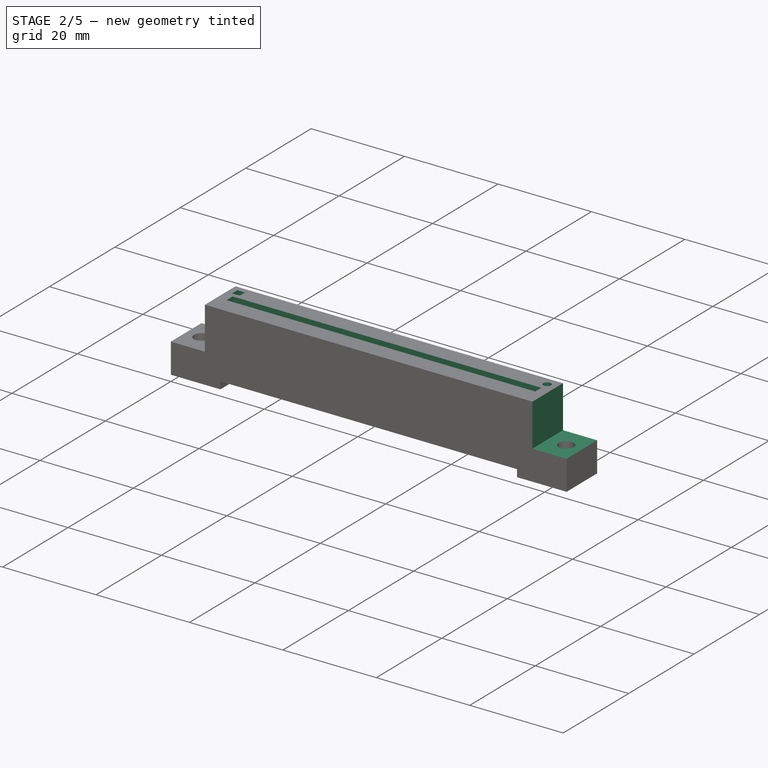
[diagram: stage 2 of 5 — iso view after this stage's code; geometry added in this stage tinted green]
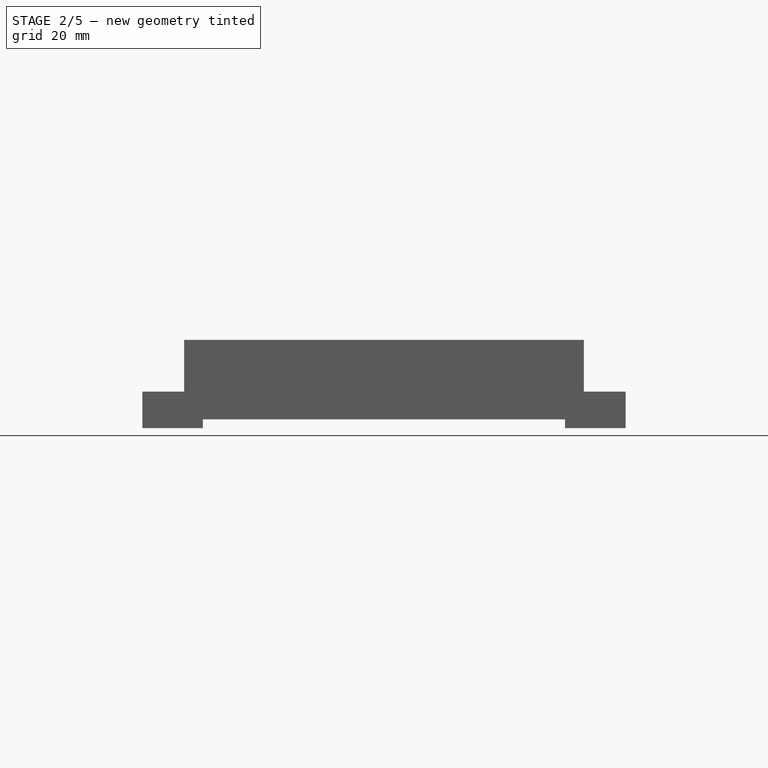
[diagram: stage 2 of 5 — front view after this stage's code; geometry added in this stage tinted green]
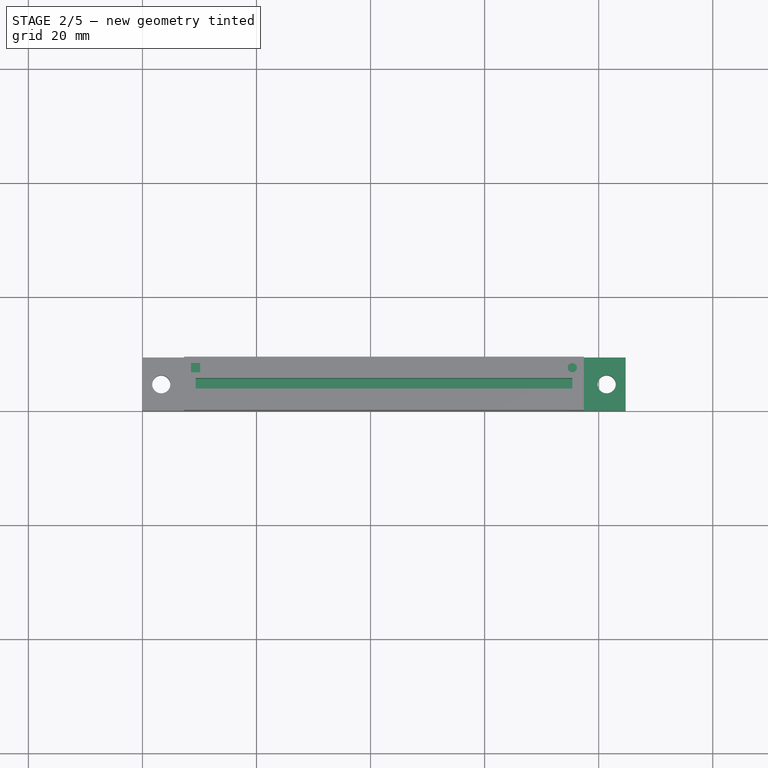
[diagram: stage 2 of 5 — top view after this stage's code; geometry added in this stage tinted green]
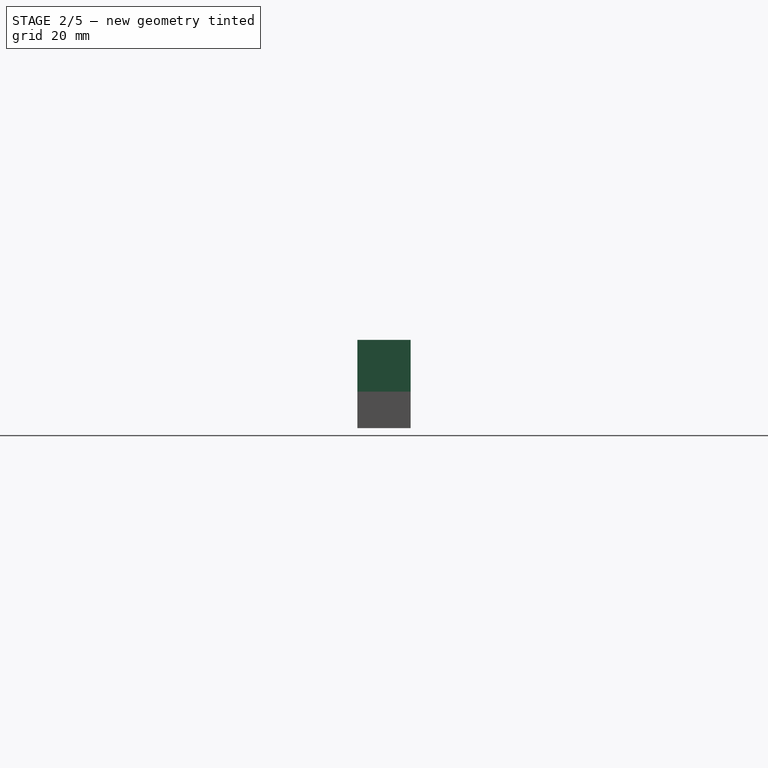
[diagram: stage 2 of 5 — right view after this stage's code; geometry added in this stage tinted green]
FEATURE [PartDesign::SubtractiveBox] Box003  label="Mounting-ear2"
  AttacherType = Attacher::AttachEngine3D
  AttachmentOffset = pos=(77.4,-0.025,6.4) rot=(0,0,1;0rad)
  BaseFeature = -> Box002
  Height = 10
  Length = 7.65
  MapMode = 5
  Placement = pos=(77.4,-0.025,6.4) rot=(0,0,1;0rad)
  Support = -> [XY_Plane]
  Width = 9.4
FEATURE [PartDesign::SubtractiveBox] Box004  label="slot"
  AttacherType = Attacher::AttachEngine3D
  AttachmentOffset = pos=(9.33,3.74,8) rot=(0,0,1;0rad)
  BaseFeature = -> Box003
  Height = 7.49
  Length = 66.05
  MapMode = 5
  Placement = pos=(9.33,3.74,8) rot=(0,0,1;0rad)
  Support = -> [XY_Plane]
  Width = 1.86
FEATURE [PartDesign::SubtractiveBox] Box005
  AttacherType = Attacher::AttachEngine3D
  AttachmentOffset = pos=(8.525,6.6,14.6) rot=(0,0,1;0rad)
  BaseFeature = -> Box004
  Height = 1
  Length = 1.6
  MapMode = 5
  Placement = pos=(8.525,6.6,14.6) rot=(0,0,1;0rad)
  Support = -> [XY_Plane]
  Width = 1.6
FEATURE [PartDesign::SubtractiveCylinder] Cylinder002
  Angle = 360
  AttacherType = Attacher::AttachEngine3D
  AttachmentOffset = pos=(75.375,7.4,14.55) rot=(0,0,1;0rad)
  BaseFeature = -> Box005
  Height = 1
  MapMode = 5
  Placement = pos=(75.375,7.4,14.55) rot=(0,0,1;0rad)
  Radius = 0.8
  Support = -> [XY_Plane]
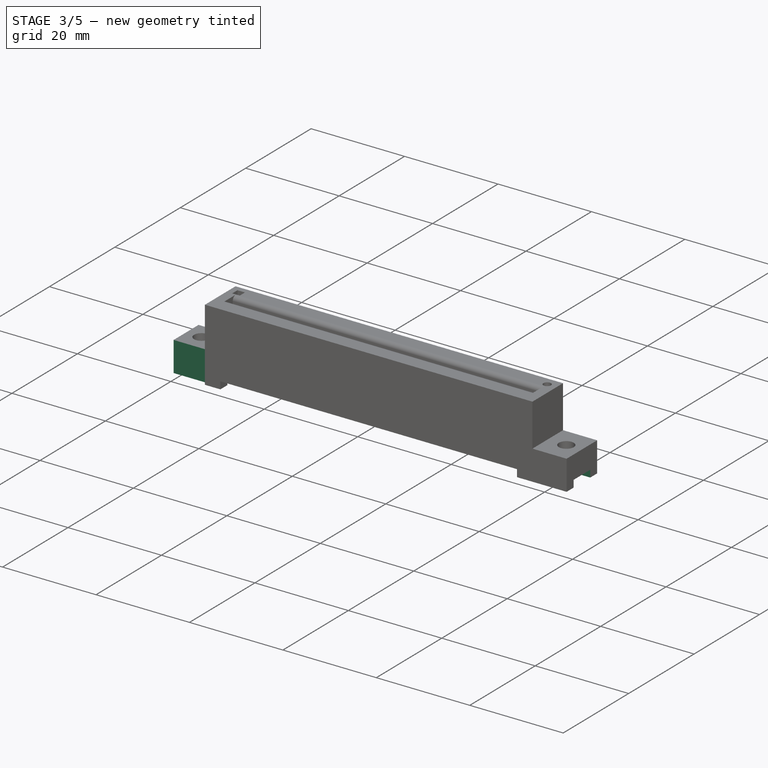
[diagram: stage 3 of 5 — iso view after this stage's code; geometry added in this stage tinted green]
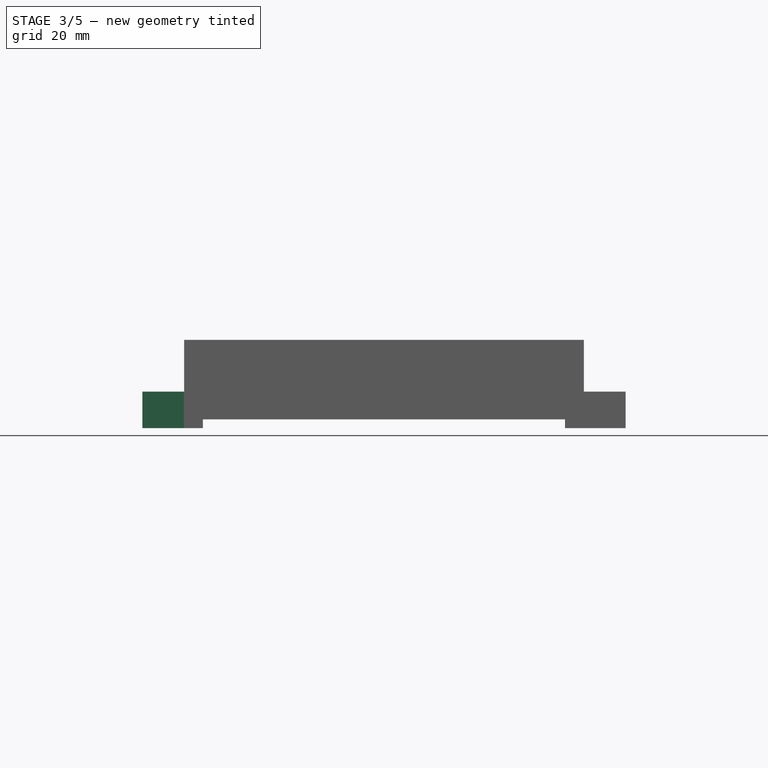
[diagram: stage 3 of 5 — front view after this stage's code; geometry added in this stage tinted green]
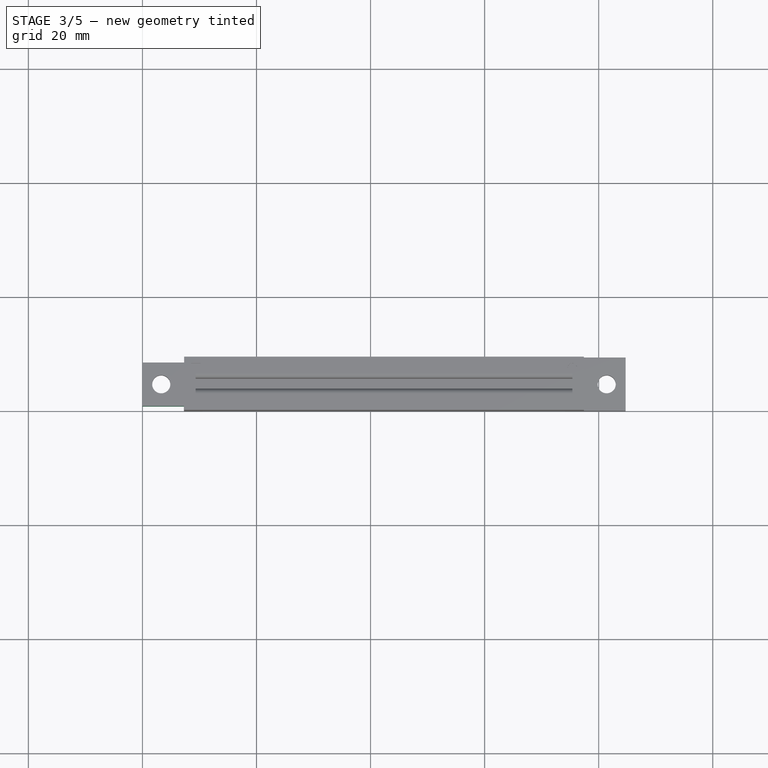
[diagram: stage 3 of 5 — top view after this stage's code; geometry added in this stage tinted green]
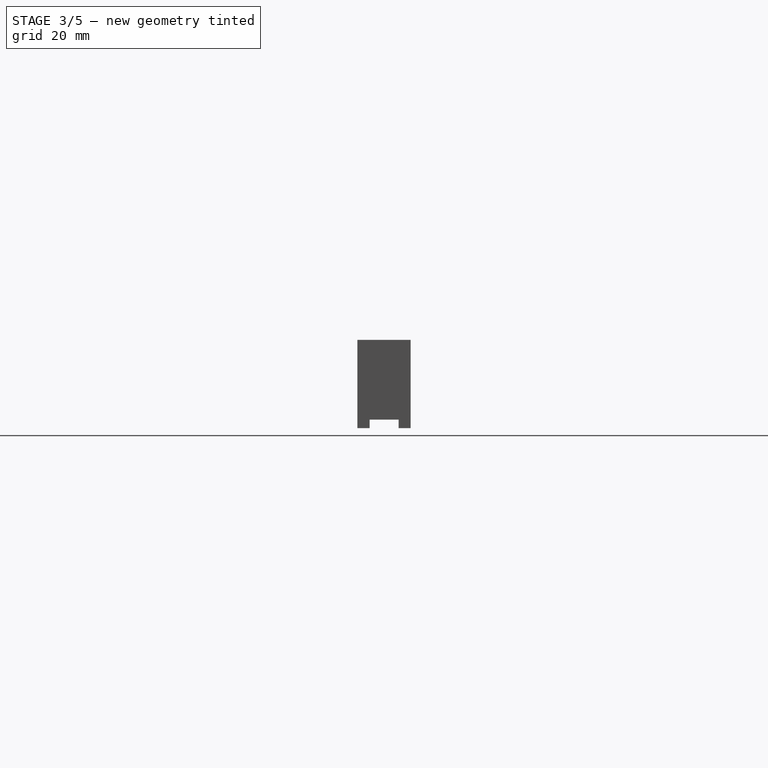
[diagram: stage 3 of 5 — right view after this stage's code; geometry added in this stage tinted green]
FEATURE [PartDesign::Fillet] Fillet
  Base = -> Cylinder002 [Edge42]
  BaseFeature = -> Cylinder002
  Placement = pos=(75.375,7.4,14.55) rot=(0,0,1;0rad)
  Radius = 0.9
  SupportTransform = false
FEATURE [PartDesign::Fillet] Fillet001
  Base = -> Fillet [Edge4]
  BaseFeature = -> Fillet
  Placement = pos=(75.375,7.4,14.55) rot=(0,0,1;0rad)
  Radius = 0.9
  SupportTransform = false
FEATURE [PartDesign::SubtractiveBox] Box006
  AttacherType = Attacher::AttachEngine3D
  BaseFeature = -> Fillet001
  Height = 10
  Length = 7.275
  MapMode = 5
  Support = -> [XY_Plane]
  Width = 0.85
FEATURE [PartDesign::SubtractiveBox] Box007
  AttacherType = Attacher::AttachEngine3D
  AttachmentOffset = pos=(0,8.475,0) rot=(0,0,1;0rad)
  BaseFeature = -> Box006
  Height = 10
  Length = 7.3
  MapMode = 5
  Placement = pos=(0,8.475,0) rot=(0,0,1;0rad)
  Support = -> [XY_Plane]
  Width = 0.875
FEATURE [PartDesign::SubtractiveBox] Box008
  AttacherType = Attacher::AttachEngine3D
  AttachmentOffset = pos=(-0.5,2.15,0) rot=(0,0,1;0rad)
  BaseFeature = -> Box007
  Height = 1.5
  Length = 86
  MapMode = 5
  Placement = pos=(-0.5,2.15,0) rot=(0,0,1;0rad)
  Support = -> [XY_Plane]
  Width = 5.08
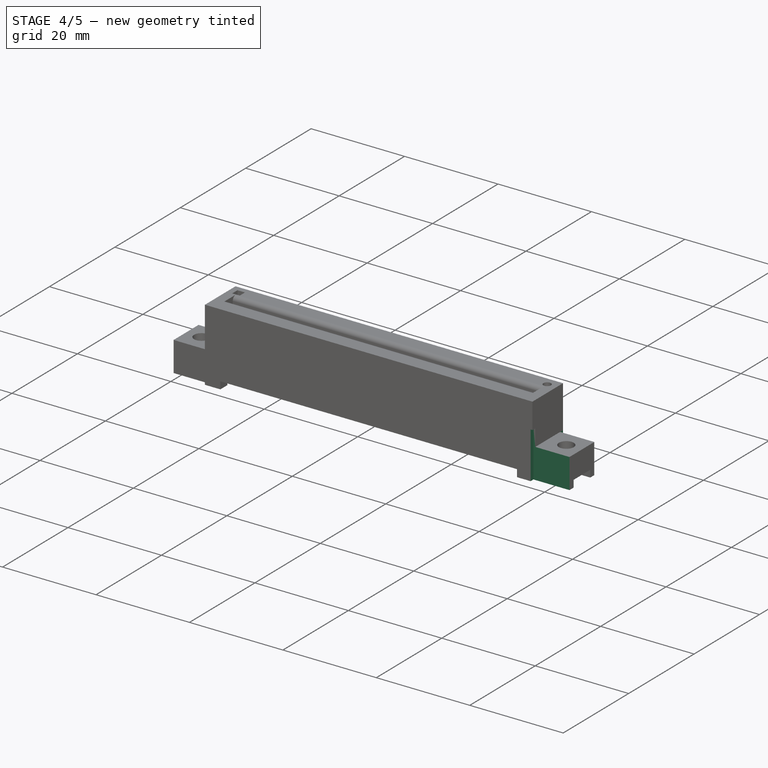
[diagram: stage 4 of 5 — iso view after this stage's code; geometry added in this stage tinted green]
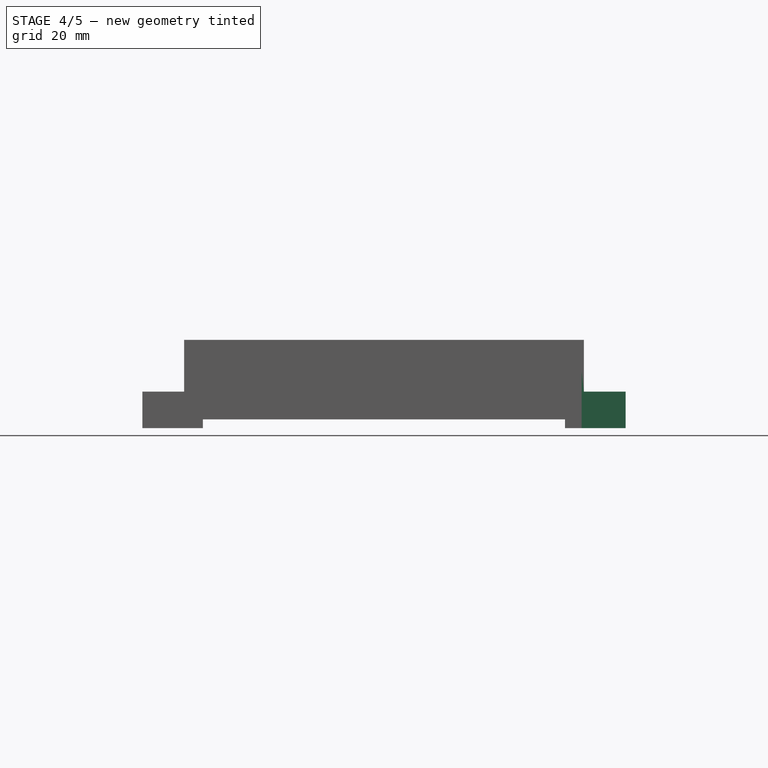
[diagram: stage 4 of 5 — front view after this stage's code; geometry added in this stage tinted green]
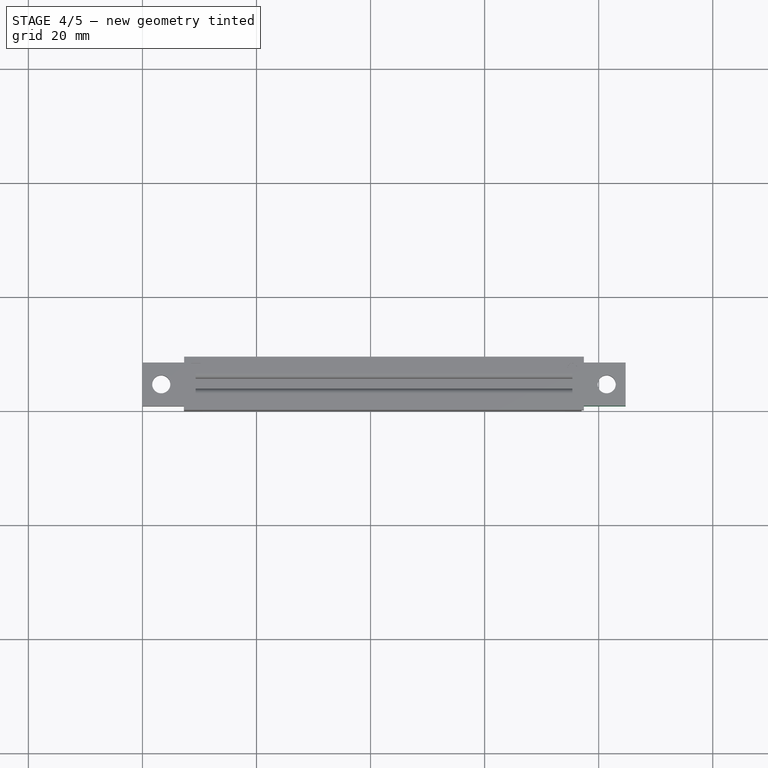
[diagram: stage 4 of 5 — top view after this stage's code; geometry added in this stage tinted green]
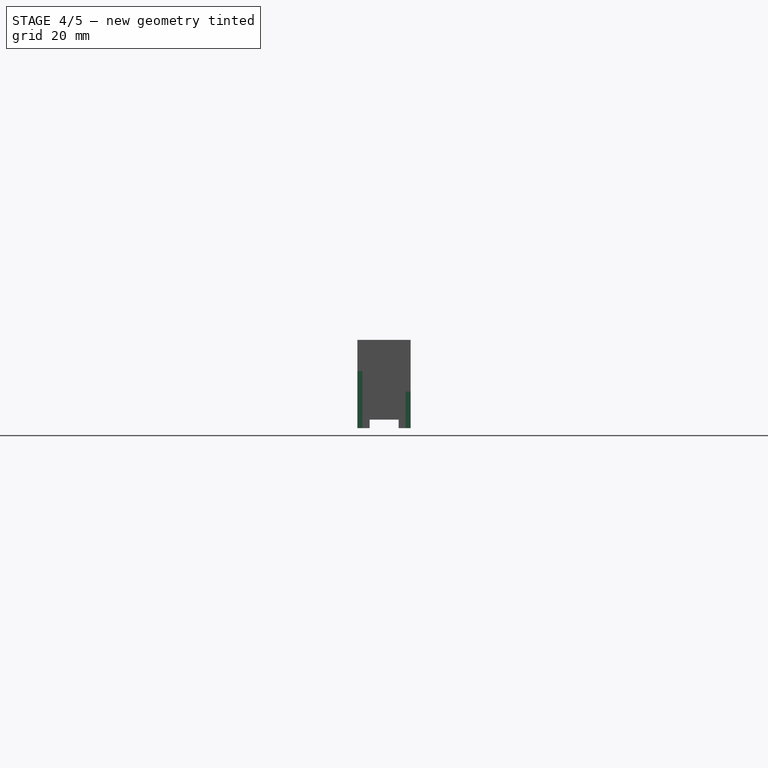
[diagram: stage 4 of 5 — right view after this stage's code; geometry added in this stage tinted green]
FEATURE [Part::Feature] Shape001003  label="TopPads"
  shape: bbox 62.61 x 6.5 x 0.01 mm, 203 faces, 50 solids (baked)
FEATURE [Part::Feature] Shape001004  label="BotPads"
  shape: bbox 62.61 x 6.5 x 0.01 mm, 203 faces, 50 solids (baked)
FEATURE [App::Part] Part
  Group = -> [Shape001003,Shape001004,THPs]
  Origin = -> Origin001
  Placement = pos=(42.375,4.6,0) rot=(0,0,1;0rad)
FEATURE [PartDesign::SubtractiveBox] Box009
  AttacherType = Attacher::AttachEngine3D
  AttachmentOffset = pos=(77,0,0) rot=(0,0,1;0rad)
  BaseFeature = -> Box008
  Height = 10
  Length = 8.3
  MapMode = 5
  Placement = pos=(77,0,0) rot=(0,0,1;0rad)
  Support = -> [XY_Plane]
  Width = 0.875
FEATURE [PartDesign::SubtractiveBox] Box010
  AttacherType = Attacher::AttachEngine3D
  AttachmentOffset = pos=(77.4,8.475,0) rot=(0,0,1;0rad)
  BaseFeature = -> Box009
  Height = 10
  Length = 8.3
  MapMode = 5
  Placement = pos=(77.4,8.475,0) rot=(0,0,1;0rad)
  Support = -> [XY_Plane]
  Width = 0.9
FEATURE [PartDesign::SubtractiveBox] Box011
  AttacherType = Attacher::AttachEngine3D
  AttachmentOffset = pos=(11.34,1.675,1.1) rot=(0,0,1;0rad)
  BaseFeature = -> Box010
  Height = 7
  Length = 1.1
  MapMode = 5
  Placement = pos=(11.34,1.675,1.1) rot=(0,0,1;0rad)
  Support = -> [XY_Plane]
  Width = 1
FEATURE [PartDesign::SubtractiveBox] Box012
  AttacherType = Attacher::AttachEngine3D
  AttachmentOffset = pos=(13.88,1.675,1.1) rot=(0,0,1;0rad)
  BaseFeature = -> Box011
  Height = 7
  Length = 1.1
  MapMode = 5
  Placement = pos=(13.88,1.675,1.1) rot=(0,0,1;0rad)
  Support = -> [XY_Plane]
  Width = 1
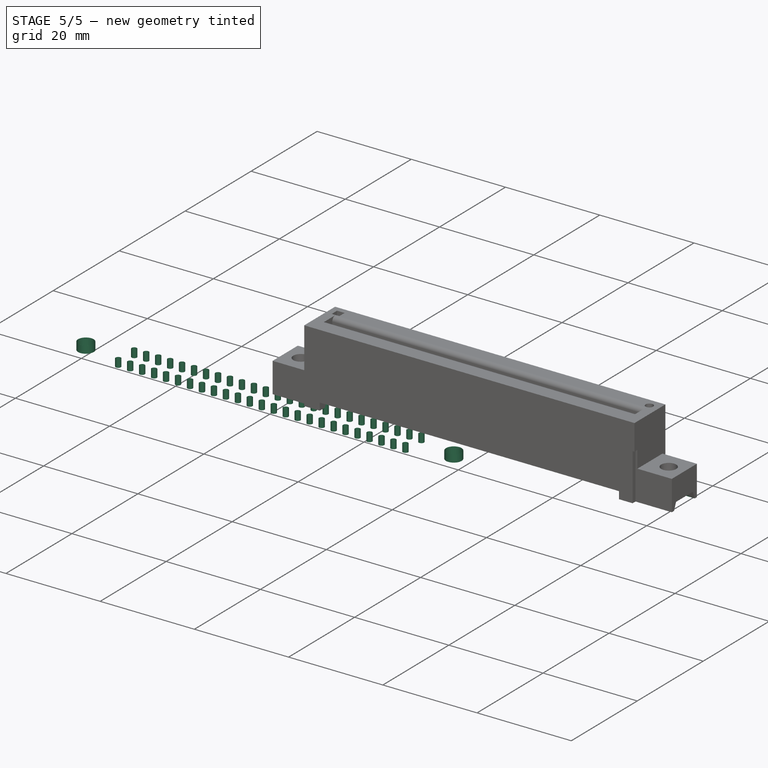
[diagram: stage 5 of 5 — iso view after this stage's code; geometry added in this stage tinted green]
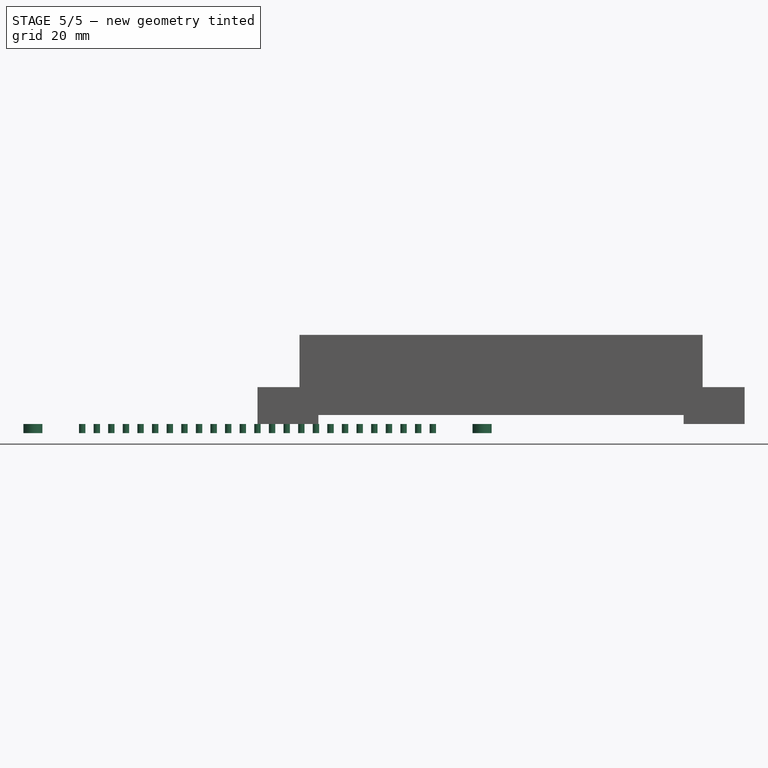
[diagram: stage 5 of 5 — front view after this stage's code; geometry added in this stage tinted green]
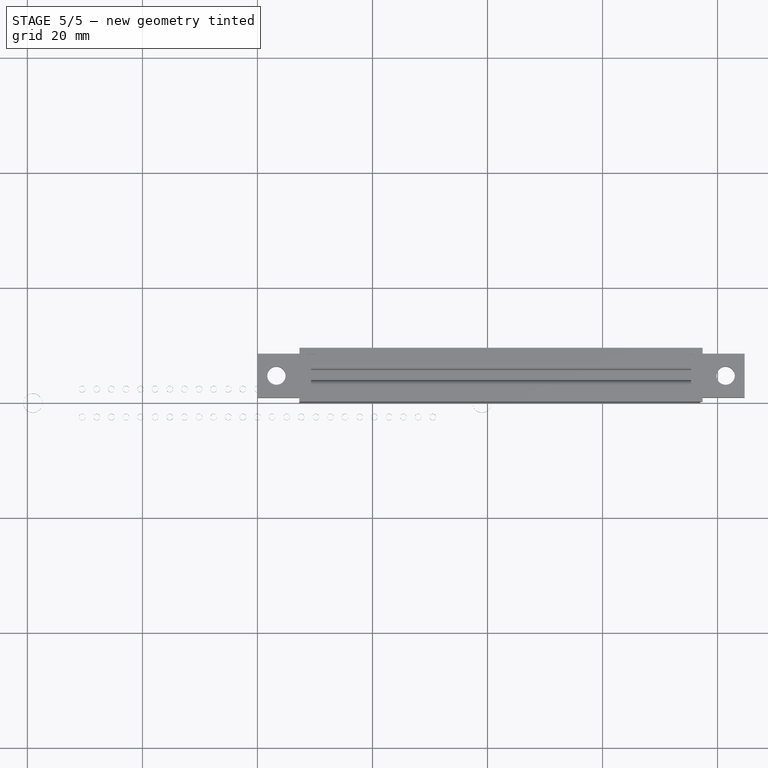
[diagram: stage 5 of 5 — top view after this stage's code; geometry added in this stage tinted green]
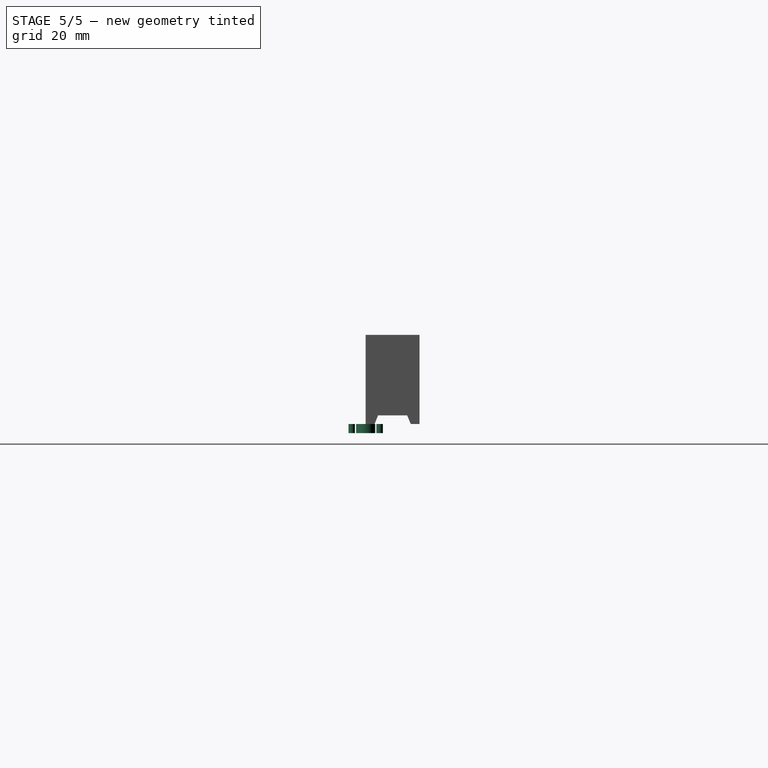
[diagram: stage 5 of 5 — right view after this stage's code; geometry added in this stage tinted green]
FEATURE [Part::FeaturePython] THPs  label="PTHs"  # a2plus imported part (geometry in sourceFile) (typed FeaturePython)
  fixedPosition = true
FEATURE [PartDesign::Chamfer] Chamfer
  Angle = 45
  Base = -> Box012 [Edge73]
  BaseFeature = -> Box012
  ChamferType = 1
  FlipDirection = false
  Placement = pos=(13.88,1.675,1.1) rot=(0,0,1;0rad)
  Size = 0.6
  Size2 = 1.48
  SupportTransform = false
FEATURE [PartDesign::Chamfer] Chamfer001
  Angle = 45
  Base = -> Chamfer [Edge60]
  BaseFeature = -> Chamfer
  ChamferType = 1
  FlipDirection = false
  Placement = pos=(13.88,1.675,1.1) rot=(0,0,1;0rad)
  Size = 1.49
  Size2 = 0.6
  SupportTransform = false
FEATURE [PartDesign::Chamfer] Chamfer002
  Angle = 45
  Base = -> Chamfer001 [Edge73]
  BaseFeature = -> Chamfer001
  ChamferType = 1
  FlipDirection = false
  Placement = pos=(13.88,1.675,1.1) rot=(0,0,1;0rad)
  Size = 0.6
  Size2 = 1.49
  SupportTransform = false
FEATURE [PartDesign::Chamfer] Chamfer003
  Angle = 45
  Base = -> Chamfer002 [Edge22]
  BaseFeature = -> Chamfer002
  ChamferType = 1
  FlipDirection = false
  Placement = pos=(13.88,1.675,1.1) rot=(0,0,1;0rad)
  Size = 1.49
  Size2 = 0.6
  SupportTransform = false
FEATURE [PartDesign::Body] Body
  Group = -> [Box,Box001,Cylinder,Cylinder001,Box002,Box003,Box004,Box005,Cylinder002,Fillet,Fillet001,Box006,Box007,Box008,Box009,Box010,Box011,Box012,Chamfer,Chamfer001,Chamfer002,Chamfer003]
  Origin = -> Origin
  Tip = -> Chamfer003
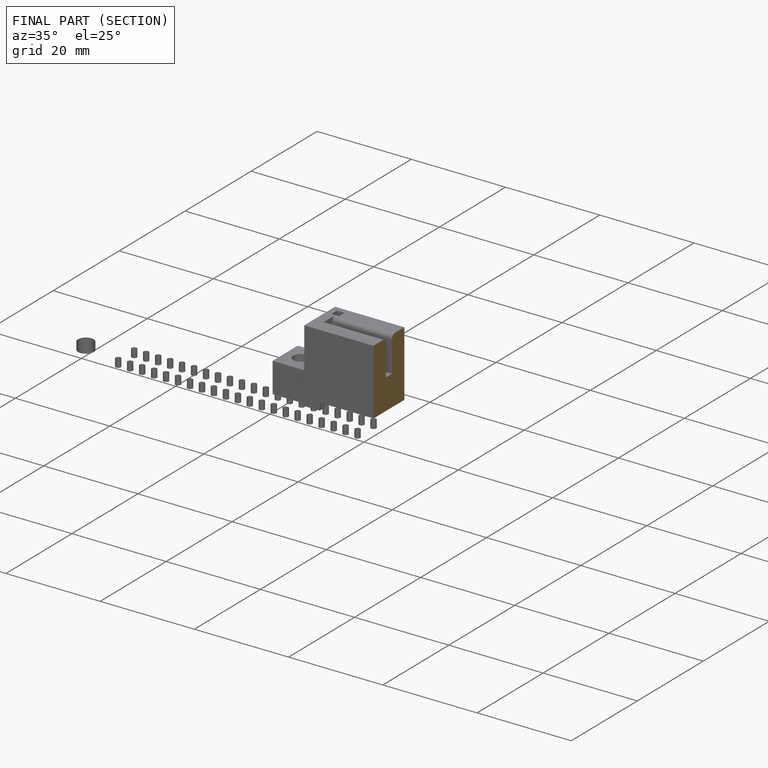
[diagram: finished part — half-section view (interior)]
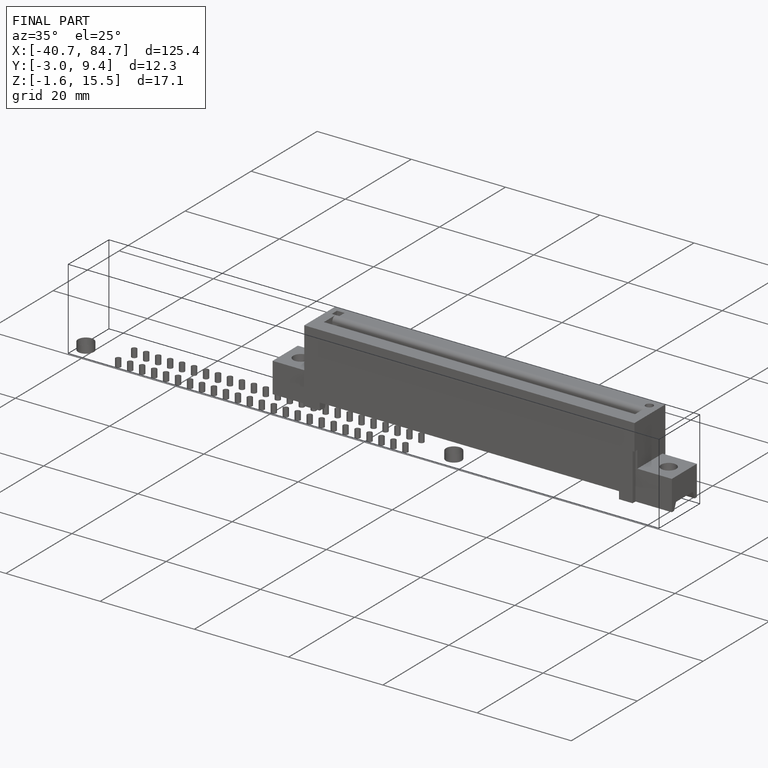
[diagram: finished part — iso view with bounding-box wireframe]
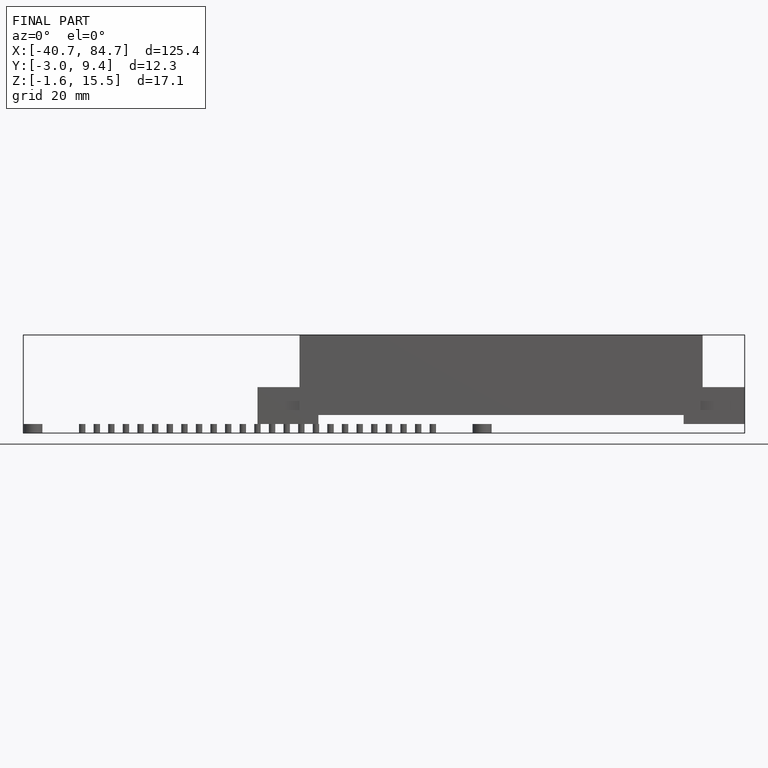
[diagram: finished part — front view with bounding-box wireframe]
